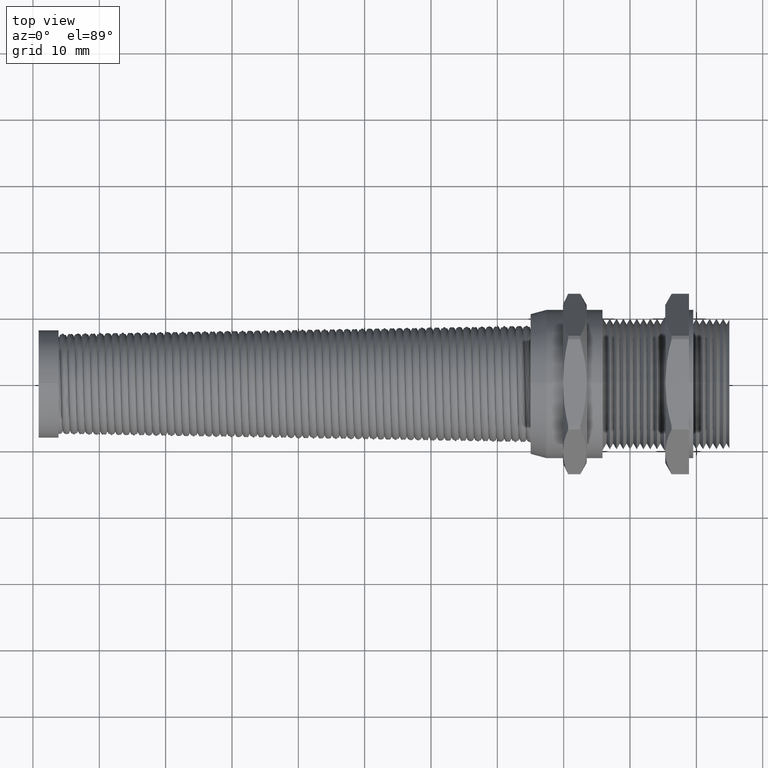
[diagram: clean part render]
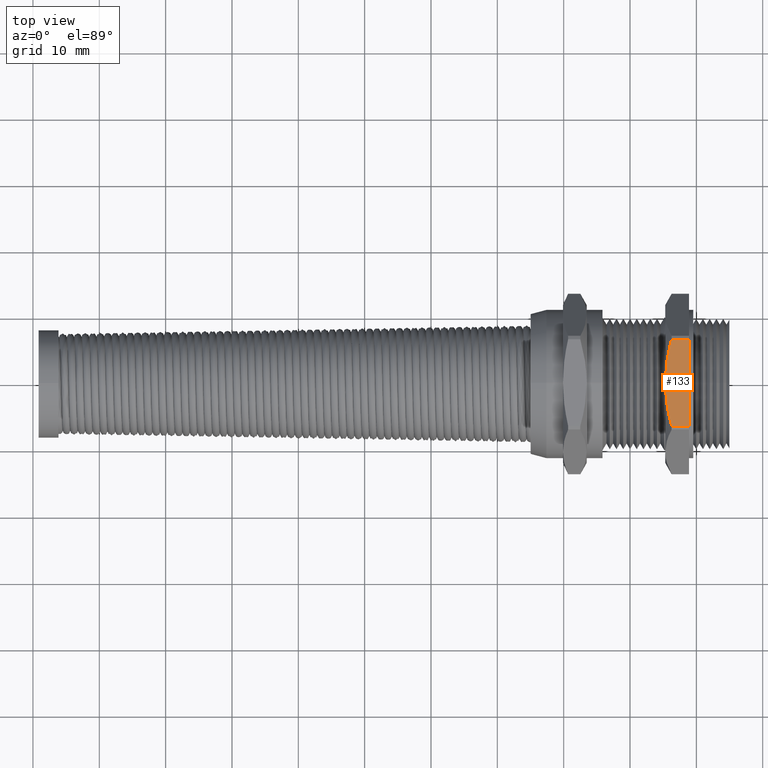
[diagram: same view with one face highlighted and labeled with its STEP entity id]
A machine part, top view. The second image highlights one B-rep face of the part: STEP entity #133.
In plain terms, the highlighted planar face has unit normal (0, 0, 1).
Its self-contained STEP definition (entity closure, byte-faithful):
#26 = VERTEX_POINT ( 'NONE', #201 ) ;
#132 = ORIENTED_EDGE ( 'NONE', *, *, #5443, .T. ) ;
#133 = ADVANCED_FACE ( 'NONE', ( #26687 ), #26686, .T. ) ;
#148 = ORIENTED_EDGE ( 'NONE', *, *, #25536, .F. ) ;
#150 = ORIENTED_EDGE ( 'NONE', *, *, #36703, .T. ) ;
#153 = VERTEX_POINT ( 'NONE', #26709 ) ;
#201 = CARTESIAN_POINT ( 'NONE',  ( 0.2469896477126770600, -0.2572579250479953800, 0.4699999999999999200 ) ) ;
#5434 = ORIENTED_EDGE ( 'NONE', *, *, #5600, .F. ) ;
#5442 = EDGE_CURVE ( 'NONE', #36721, #26, #27266, .T. ) ;
#5443 = EDGE_CURVE ( 'NONE', #153, #36721, #27316, .T. ) ;
#5444 = ORIENTED_EDGE ( 'NONE', *, *, #5442, .T. ) ;
#5447 = EDGE_LOOP ( 'NONE', ( #5434, #132, #5444, #150, #148 ) ) ;
#5600 = EDGE_CURVE ( 'NONE', #153, #25505, #27597, .T. ) ;
#25505 = VERTEX_POINT ( 'NONE', #28027 ) ;
#25530 = VERTEX_POINT ( 'NONE', #28118 ) ;
#25536 = EDGE_CURVE ( 'NONE', #25505, #25530, #28108, .T. ) ;
#26682 = DIRECTION ( 'NONE',  ( 1.000000000000000000, 0.0000000000000000000, 0.0000000000000000000 ) ) ;
#26683 = DIRECTION ( 'NONE',  ( 0.0000000000000000000, 0.0000000000000000000, 1.000000000000000000 ) ) ;
#26684 = CARTESIAN_POINT ( 'NONE',  ( -1.928625965973398900, 0.2572579250479953800, 0.4699999999999999200 ) ) ;
#26685 = AXIS2_PLACEMENT_3D ( 'NONE', #26684, #26683, #26682 ) ;
#26686 = PLANE ( 'NONE',  #26685 ) ;
#26687 = FACE_OUTER_BOUND ( 'NONE', #5447, .T. ) ;
#26709 = CARTESIAN_POINT ( 'NONE',  ( 0.2469896477126770600, 0.2572579250479953300, 0.4699999999999999200 ) ) ;
#27266 = B_SPLINE_CURVE_WITH_KNOTS ( 'NONE', 3,
 ( #27323, #27322, #27321, #27320, #27319, #27318 ),
 .UNSPECIFIED., .F., .F.,
 ( 4, 2, 4 ),
 ( 0.03799151003274251600, 0.04129634848707602200, 0.04460118694140952800 ),
 .UNSPECIFIED. ) ;
#27306 = CARTESIAN_POINT ( 'NONE',  ( 0.2089999999999999400, 0.0000000000000000000, 0.4699999999999999200 ) ) ;
#27307 = CARTESIAN_POINT ( 'NONE',  ( 0.2089999999999998500, 0.02171485112955175200, 0.4699999999999997000 ) ) ;
#27308 = CARTESIAN_POINT ( 'NONE',  ( 0.2098730179914701500, 0.04349577755269813700, 0.4699999999999999700 ) ) ;
#27309 = CARTESIAN_POINT ( 'NONE',  ( 0.2133466631367554600, 0.08718838633269833400, 0.4699999999999999200 ) ) ;
#27310 = CARTESIAN_POINT ( 'NONE',  ( 0.2159370576833421200, 0.1089387947949669200, 0.4699999999999999200 ) ) ;
#27311 = CARTESIAN_POINT ( 'NONE',  ( 0.2258913184282765900, 0.1734147641535644100, 0.4699999999999999700 ) ) ;
#27312 = CARTESIAN_POINT ( 'NONE',  ( 0.2354436818956041600, 0.2156069817545528100, 0.4699999999999998600 ) ) ;
#27313 = CARTESIAN_POINT ( 'NONE',  ( 0.2469896477126770600, 0.2572579250479953300, 0.4699999999999999200 ) ) ;
#27316 = B_SPLINE_CURVE_WITH_KNOTS ( 'NONE', 3,
 ( #27313, #27312, #27311, #27310, #27309, #27308, #27307, #27306 ),
 .UNSPECIFIED., .F., .F.,
 ( 4, 2, 2, 4 ),
 ( 0.03138027437588538500, 0.03468589220431395100, 0.03633870111852823700, 0.03799151003274251600 ),
 .UNSPECIFIED. ) ;
#27318 = CARTESIAN_POINT ( 'NONE',  ( 0.2469896477126770600, -0.2572579250479953800, 0.4699999999999999200 ) ) ;
#27319 = CARTESIAN_POINT ( 'NONE',  ( 0.2353585123327312200, -0.2152997408801483300, 0.4699999999999999200 ) ) ;
#27320 = CARTESIAN_POINT ( 'NONE',  ( 0.2256930963075211000, -0.1724144161843168500, 0.4699999999999999200 ) ) ;
#27321 = CARTESIAN_POINT ( 'NONE',  ( 0.2125286380057564400, -0.08657185673703334000, 0.4699999999999999700 ) ) ;
#27322 = CARTESIAN_POINT ( 'NONE',  ( 0.2089999999999998000, -0.04341946272548115300, 0.4699999999999997500 ) ) ;
#27323 = CARTESIAN_POINT ( 'NONE',  ( 0.2089999999999999400, 0.0000000000000000000, 0.4699999999999999200 ) ) ;
#27594 = DIRECTION ( 'NONE',  ( 1.000000000000000000, 0.0000000000000000000, 0.0000000000000000000 ) ) ;
#27595 = VECTOR ( 'NONE', #27594, 39.37007874015748100 ) ;
#27596 = CARTESIAN_POINT ( 'NONE',  ( -1.928625965973398900, 0.2572579250479953300, 0.4699999999999998600 ) ) ;
#27597 = LINE ( 'NONE', #27596, #27595 ) ;
#28027 = CARTESIAN_POINT ( 'NONE',  ( 0.3499999999999999800, 0.2572579250479953300, 0.4699999999999998600 ) ) ;
#28105 = DIRECTION ( 'NONE',  ( 0.0000000000000000000, -1.000000000000000000, 0.0000000000000000000 ) ) ;
#28106 = VECTOR ( 'NONE', #28105, 39.37007874015748100 ) ;
#28107 = CARTESIAN_POINT ( 'NONE',  ( 0.3499999999999999800, 0.2572579250479953800, 0.4699999999999999200 ) ) ;
#28108 = LINE ( 'NONE', #28107, #28106 ) ;
#28118 = CARTESIAN_POINT ( 'NONE',  ( 0.3499999999999998100, -0.2572579250479953800, 0.4699999999999999200 ) ) ;
#28487 = DIRECTION ( 'NONE',  ( 1.000000000000000000, 0.0000000000000000000, 0.0000000000000000000 ) ) ;
#28488 = VECTOR ( 'NONE', #28487, 39.37007874015748100 ) ;
#28489 = CARTESIAN_POINT ( 'NONE',  ( -1.928625965973398900, -0.2572579250479953800, 0.4699999999999999200 ) ) ;
#28490 = LINE ( 'NONE', #28489, #28488 ) ;
#28523 = CARTESIAN_POINT ( 'NONE',  ( 0.2089999999999999400, 0.0000000000000000000, 0.4699999999999999200 ) ) ;
#36703 = EDGE_CURVE ( 'NONE', #26, #25530, #28490, .T. ) ;
#36721 = VERTEX_POINT ( 'NONE', #28523 ) ;